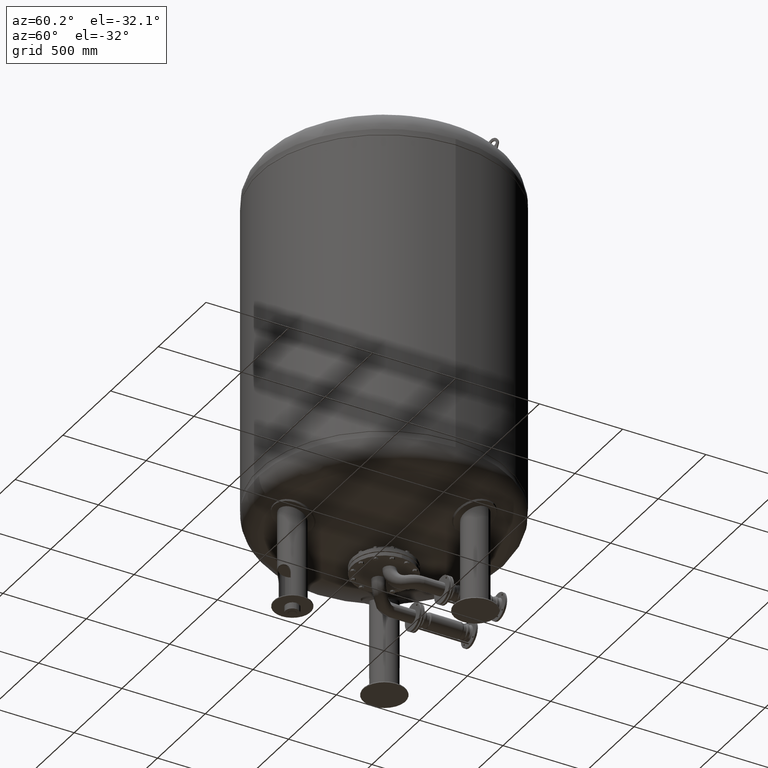
[diagram: clean part render]
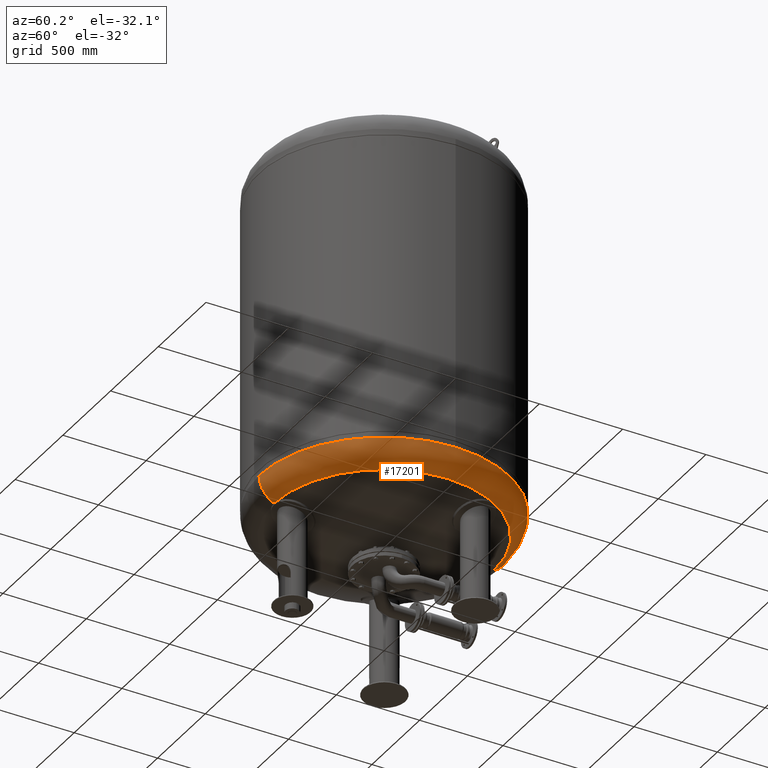
[diagram: same view with one face highlighted and labeled with its STEP entity id]
A machine part, auxiliary view. The second image highlights one B-rep face of the part: STEP entity #17201.
In plain terms, the highlighted toroidal blend (fillet) surface has major radius 591 mm and minor (blend) radius 159 mm.
Its self-contained STEP definition (entity closure, byte-faithful):
#17087=CARTESIAN_POINT('',(750.0,3.761120E-014,785.237667415898160));
#17088=VERTEX_POINT('',#17087);
#17095=CARTESIAN_POINT('',(-1.628998E-013,750.0,785.237667415898270));
#17096=VERTEX_POINT('',#17095);
#17097=CARTESIAN_POINT('',(-5.075605E-014,-5.423428E-014,785.237667415898160));
#17098=DIRECTION('',(0.0,0.0,1.0));
#17099=DIRECTION('',(-1.0,0.0,0.0));
#17100=AXIS2_PLACEMENT_3D('',#17097,#17098,#17099);
#17101=CIRCLE('',#17100,750.0);
#17102=EDGE_CURVE('',#17088,#17096,#17101,.T.);
#17119=CARTESIAN_POINT('',(-7.105427E-014,-750.0,785.237667415898040));
#17120=VERTEX_POINT('',#17119);
#17121=CARTESIAN_POINT('',(-4.647817E-014,-660.606666666666800,642.283437133770350));
#17122=VERTEX_POINT('',#17121);
#17123=CARTESIAN_POINT('',(-7.105427E-014,-591.0,785.237667415898040));
#17124=DIRECTION('',(1.0,0.0,0.0));
#17125=DIRECTION('',(0.0,-1.0,0.0));
#17126=AXIS2_PLACEMENT_3D('',#17123,#17124,#17125);
#17127=CIRCLE('',#17126,159.0);
#17128=EDGE_CURVE('',#17120,#17122,#17127,.T.);
#17138=CARTESIAN_POINT('',(-1.273765E-013,660.606666666666800,642.283437133770800));
#17139=VERTEX_POINT('',#17138);
#17140=CARTESIAN_POINT('',(-1.434285E-013,591.0,785.237667415898270));
#17141=DIRECTION('',(-1.0,0.0,0.0));
#17142=DIRECTION('',(0.0,1.0,0.0));
#17143=AXIS2_PLACEMENT_3D('',#17140,#17141,#17142);
#17144=CIRCLE('',#17143,159.0);
#17145=EDGE_CURVE('',#17096,#17139,#17144,.T.);
#17173=CARTESIAN_POINT('',(-2.617994E-014,-2.797401E-014,642.283437133770580));
#17174=DIRECTION('',(0.0,0.0,1.0));
#17175=DIRECTION('',(-1.0,0.0,0.0));
#17176=AXIS2_PLACEMENT_3D('',#17173,#17174,#17175);
#17177=CIRCLE('',#17176,660.606666666666800);
#17178=EDGE_CURVE('',#17122,#17139,#17177,.T.);
#17183=CARTESIAN_POINT('',(-7.105427E-014,-5.423428E-014,785.237667415898160));
#17184=DIRECTION('',(-1.719159E-016,-1.836970E-016,1.0));
#17185=DIRECTION('',(0.0,-1.0,0.0));
#17186=AXIS2_PLACEMENT_3D('',#17183,#17184,#17185);
#17187=TOROIDAL_SURFACE('',#17186,591.0,159.0);
#17188=ORIENTED_EDGE('',*,*,#17128,.T.);
#17189=ORIENTED_EDGE('',*,*,#17178,.T.);
#17190=ORIENTED_EDGE('',*,*,#17145,.F.);
#17191=ORIENTED_EDGE('',*,*,#17102,.F.);
#17192=CARTESIAN_POINT('',(-5.075605E-014,-5.423428E-014,785.237667415898160));
#17193=DIRECTION('',(0.0,0.0,1.0));
#17194=DIRECTION('',(-1.0,0.0,0.0));
#17195=AXIS2_PLACEMENT_3D('',#17192,#17193,#17194);
#17196=CIRCLE('',#17195,750.0);
#17197=EDGE_CURVE('',#17120,#17088,#17196,.T.);
#17198=ORIENTED_EDGE('',*,*,#17197,.F.);
#17199=EDGE_LOOP('',(#17188,#17189,#17190,#17191,#17198));
#17200=FACE_OUTER_BOUND('',#17199,.T.);
#17201=ADVANCED_FACE('',(#17200),#17187,.T.);